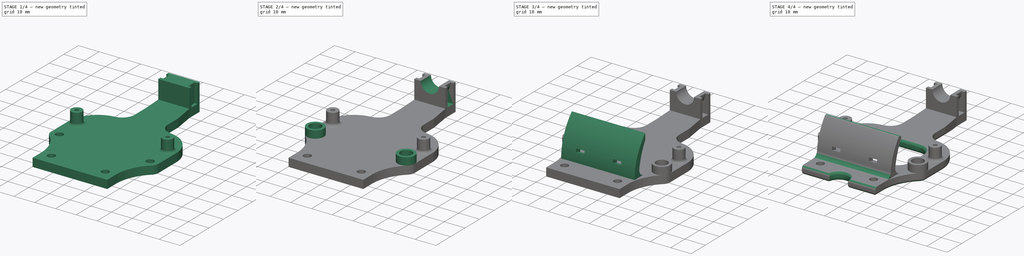
[diagram: build sequence overview — one tinted view per stage of 4, left to right]
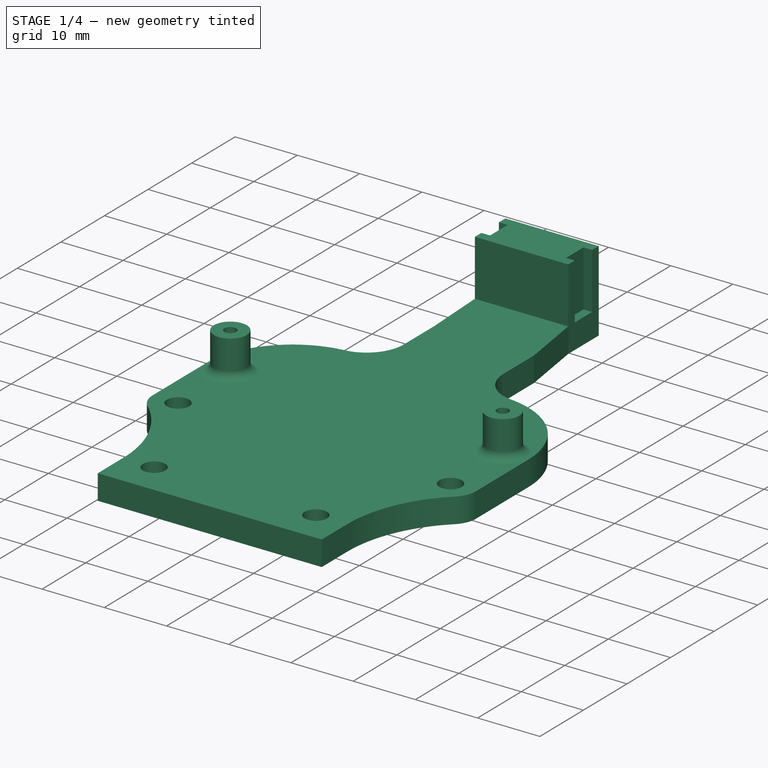
[diagram: stage 1 of 4 — iso view after this stage's code; geometry added in this stage tinted green]
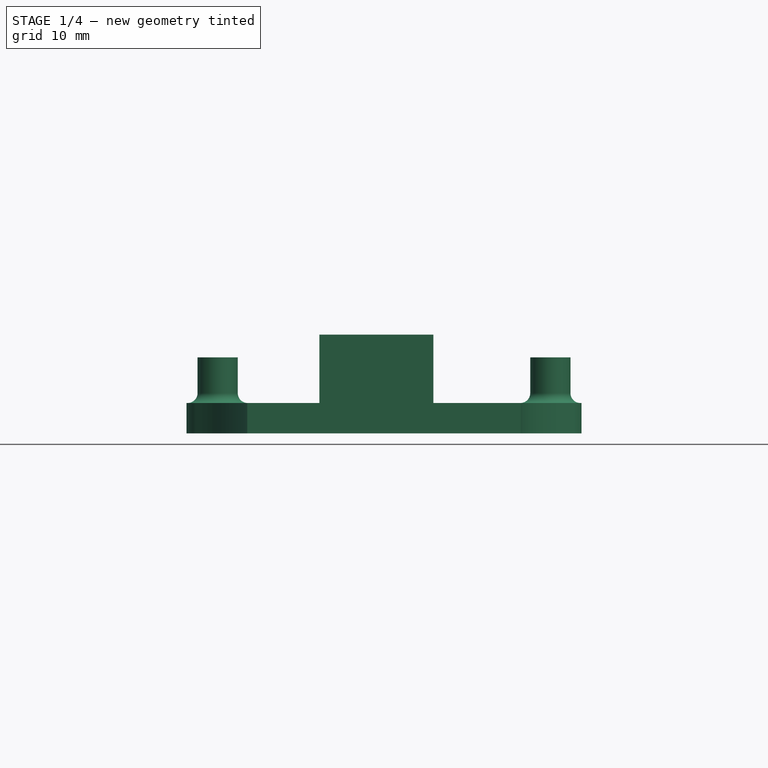
[diagram: stage 1 of 4 — front view after this stage's code; geometry added in this stage tinted green]
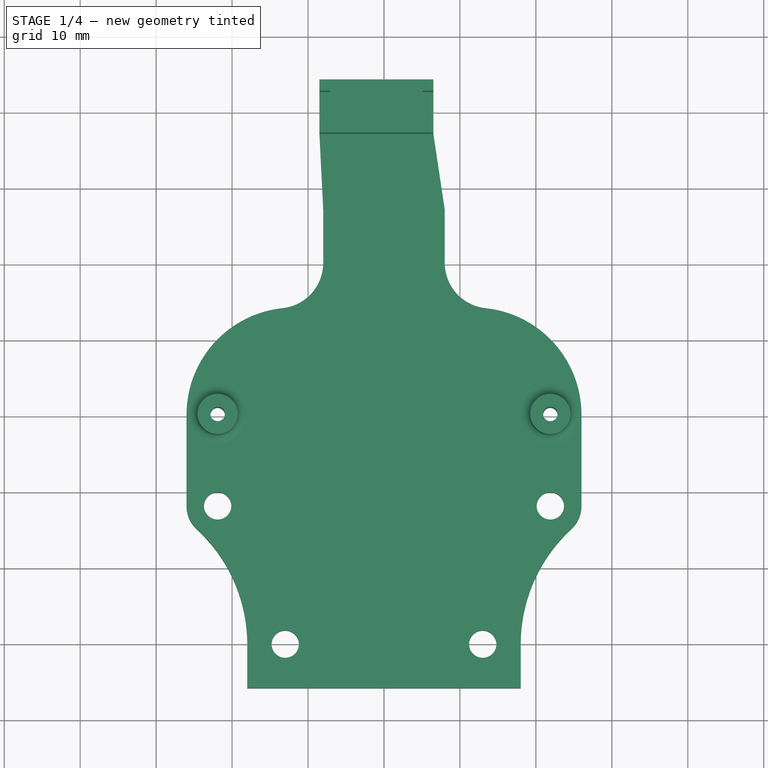
[diagram: stage 1 of 4 — top view after this stage's code; geometry added in this stage tinted green]
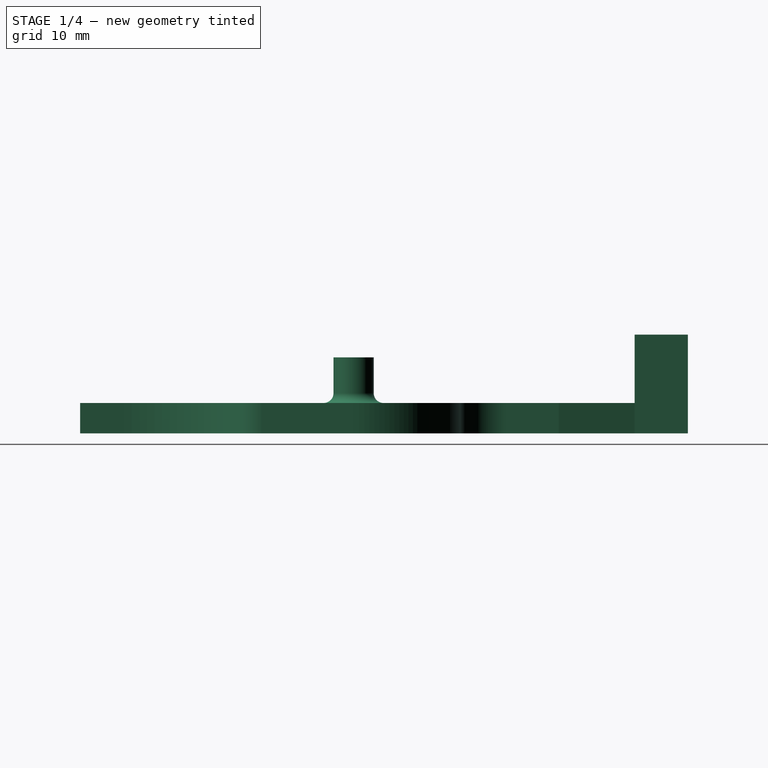
[diagram: stage 1 of 4 — right view after this stage's code; geometry added in this stage tinted green]
FCSTD DOCUMENT  (FreeCAD 1.0R39319 (Git))
Label: DragonSH36
License: All rights reserved
LicenseURL: https://en.wikipedia.org/wiki/All_rights_reserved
objects: Sketcher::SketchObject×10, PartDesign::Pad×5, PartDesign::Pocket×5, PartDesign::Fillet×4, App::VarSet×1, PartDesign::Body×1
note: 63 computed .brp shape members not serialized (recipe doc carries the construction recipe); baked Part::Feature solids carry a one-line shape summary decoded from their .brp

FEATURE [App::VarSet] VarSet
  BaseScrewDistance = 26
  CableGuideBottomOffset = 10.5
  CableGuideHeight = 18
  CableGuideTopOffset = 18
  CableTieHeight = 9
  CableTieWidth = 4
  ConectorWidth = 16
  DX = 52
  DZ = 4
  M3HeadDiameter = 5.6
  M3HeadHeight = 3.6
  M3PassThroughDiameter = 3.6
  M3SelfTappingDiameter = 2.9
  MiniBlackHeaderDiameter = 5.3
  MiniBlackLength = 6
  MiniBlackPassThroughDiameter = 2.4
  MiniBlackSelfTappingDiameter = 1.9
  MotorScrewDistance = 43.8
  MotorScrewFromBase = 18.2
  PcbPoleHeight = 6
  PcbThickness = 2
  Sht36OffsetFromStepper = 12
  Sht36ScrewToTop = 20
  UmbilicalOffset = 1
FEATURE [Sketcher::SketchObject] Sketch
  ArcFitTolerance = 1e-06
  AttachmentSupport = -> [XY_Plane]
  FullyConstrained = true
  MakeInternals = false
  MapMode = 5
  expr: Constraints[22] = VarSet.MotorScrewFromBase
  expr: Constraints[23] = VarSet.MotorScrewDistance
  expr: Constraints[26] = VarSet.DX
  expr: Constraints[37] = VarSet.Sht36OffsetFromStepper
  expr: Constraints[41] = VarSet.MiniBlackSelfTappingDiameter
  expr: Constraints[47] = VarSet.Sht36OffsetFromStepper
  expr: Constraints[52] = VarSet.Sht36ScrewToTop
  expr: Constraints[55] = VarSet.ConectorWidth
  expr: Constraints[5] = VarSet.BaseScrewDistance
  expr: Constraints[6] = VarSet.M3PassThroughDiameter
  expr: Constraints[92] = VarSet.UmbilicalOffset
  sketch-geometry (37):
    g0: Circle CenterX=13 CenterY=0 CenterZ=0 NormalX=0 NormalY=0 NormalZ=1 AngleXU=0 Radius=1.8
    g1: Circle CenterX=-13 CenterY=0 CenterZ=0 NormalX=0 NormalY=0 NormalZ=1 AngleXU=0 Radius=1.8
    g2: LineSegment [constr] StartX=-13 StartY=0 StartZ=0 EndX=13 EndY=0 EndZ=0
    g3: LineSegment StartX=-18 StartY=-5.8 StartZ=0 EndX=18 EndY=-5.8 EndZ=0
    g4: LineSegment StartX=18 StartY=-5.8 StartZ=0 EndX=18 EndY=-4.4e-15 EndZ=0
    g5: LineSegment StartX=-18 StartY=-5.8 StartZ=0 EndX=-18 EndY=0 EndZ=0
    g6: Circle CenterX=-21.9 CenterY=18.2 CenterZ=0 NormalX=0 NormalY=0 NormalZ=1 AngleXU=0 Radius=1.8
    g7: Circle CenterX=21.9 CenterY=18.2 CenterZ=0 NormalX=0 NormalY=0 NormalZ=1 AngleXU=0 Radius=1.8
    g8: LineSegment [constr] StartX=-21.9 StartY=18.2 StartZ=0 EndX=-21.9 EndY=0 EndZ=0
    g9: LineSegment [constr] StartX=-26 StartY=18.2 StartZ=0 EndX=26 EndY=18.2 EndZ=0
    g10: ArcOfCircle CenterX=-21.9 CenterY=18.2 CenterZ=0 NormalX=0 NormalY=0 NormalZ=1 AngleXU=0 Radius=4.1 StartAngle=3.14159 EndAngle=3.96987
    g11: ArcOfCircle CenterX=21.9 CenterY=18.2 CenterZ=0 NormalX=0 NormalY=0 NormalZ=1 AngleXU=0 Radius=4.1 StartAngle=5.45491 EndAngle=6.28319
    g12: ArcOfCircle CenterX=-38.6025 CenterY=0 CenterZ=0 NormalX=0 NormalY=0 NormalZ=1 AngleXU=0 Radius=20.6025 StartAngle=0 EndAngle=0.828277
    g13: ArcOfCircle CenterX=38.6025 CenterY=2.5e-15 CenterZ=0 NormalX=0 NormalY=0 NormalZ=1 AngleXU=0 Radius=20.6025 StartAngle=2.31332 EndAngle=3.14159
    g14: LineSegment [constr] StartX=-21.9 StartY=18.2 StartZ=0 EndX=-21.9 EndY=30.2 EndZ=0
    g15: Circle CenterX=-21.9 CenterY=30.2 CenterZ=0 NormalX=0 NormalY=0 NormalZ=1 AngleXU=0 Radius=0.95
    g16: Circle CenterX=21.9 CenterY=30.2 CenterZ=0 NormalX=0 NormalY=0 NormalZ=1 AngleXU=0 Radius=0.95
    g17: LineSegment StartX=26 StartY=18.2 StartZ=0 EndX=26 EndY=30.2 EndZ=0
    g18: LineSegment StartX=-26 StartY=18.2 StartZ=0 EndX=-26 EndY=30.2 EndZ=0
    g19: LineSegment [constr] StartX=-21.9 StartY=30.2 StartZ=0 EndX=21.9 EndY=30.2 EndZ=0
    g20: LineSegment [constr] StartX=1.2e-15 StartY=30.2 StartZ=0 EndX=0 EndY=50.2 EndZ=0
    g21: LineSegment [constr] StartX=-8 StartY=50.2 StartZ=0 EndX=8 EndY=50.2 EndZ=0
    g22: ArcOfCircle CenterX=-14 CenterY=50.2 CenterZ=0 NormalX=0 NormalY=0 NormalZ=1 AngleXU=0 Radius=6 StartAngle=4.81756 EndAngle=6.28319
    g23: ArcOfCircle CenterX=14 CenterY=50.2 CenterZ=0 NormalX=0 NormalY=0 NormalZ=1 AngleXU=0 Radius=6 StartAngle=3.14159 EndAngle=4.60722
    g24: LineSegment [constr] StartX=8 StartY=50.2 StartZ=0 EndX=14 EndY=50.2 EndZ=0
    g25: LineSegment [constr] StartX=-8 StartY=50.2 StartZ=0 EndX=-14 EndY=50.2 EndZ=0
    g26: ArcOfCircle CenterX=-11.8889 CenterY=30.2 CenterZ=0 NormalX=0 NormalY=0 NormalZ=1 AngleXU=0 Radius=14.1111 StartAngle=1.67596 EndAngle=3.14159
    g27: ArcOfCircle CenterX=11.8889 CenterY=30.2 CenterZ=0 NormalX=0 NormalY=0 NormalZ=1 AngleXU=0 Radius=14.1111 StartAngle=0 EndAngle=1.46563
    g28: LineSegment StartX=-8 StartY=50.2 StartZ=0 EndX=-8 EndY=57.2 EndZ=0
    g29: LineSegment StartX=8 StartY=50.2 StartZ=0 EndX=8 EndY=57.2 EndZ=0
    g30: LineSegment [constr] StartX=-8.5 StartY=67.2 StartZ=0 EndX=6.5 EndY=67.2 EndZ=0
    g31: LineSegment StartX=-8 StartY=57.2 StartZ=0 EndX=-8.5 EndY=67.2 EndZ=0
    g32: LineSegment StartX=8 StartY=57.2 StartZ=0 EndX=6.5 EndY=67.2 EndZ=0
    g33: LineSegment StartX=-8.5 StartY=67.2 StartZ=0 EndX=-8.5 EndY=74.2 EndZ=0
    g34: LineSegment StartX=6.5 StartY=67.2 StartZ=0 EndX=6.5 EndY=74.2 EndZ=0
    g35: LineSegment StartX=-8.5 StartY=74.2 StartZ=0 EndX=6.5 EndY=74.2 EndZ=0
    g36: LineSegment [constr] StartX=-1 StartY=30.2 StartZ=0 EndX=-1 EndY=90.2 EndZ=0
  constraints (95):
    c: PointOnObject(g0,g-1)
    c: Symmetric(g1,g0,g-1)
    c: Equal(g0,g1)
    c: Coincident(g2,g1)
    c: Coincident(g2,g0)
    c: Distance(g2) = 26
    c: Diameter(g0) = 3.6
    c: Distance(g3) = 36
    c: Symmetric(g3,g3,g-2)
    c: Coincident(g4,g3)
    c: PointOnObject(g4,g-1)
    c: Vertical(g4)
    c: Distance(g4) = 5.8
    c: Coincident(g5,g3)
    c: PointOnObject(g5,g-1)
    c: Vertical(g5)
    c: Equal(g0,g7)
    c: Equal(g7,g6)
    c: Symmetric(g6,g7,g-2)
    c: Coincident(g8,g6)
    c: PointOnObject(g8,g-1)
    c: Vertical(g8)
    c: Distance(g8) = 18.2
    c: Distance(g6,g7) = 43.8
    c: Symmetric(g9,g9,g-2)
    c: PointOnObject(g7,g9)
    c: Distance(g9) = 52
    c: Coincident(g10,g6)
    c: Coincident(g10,g9)
    c: Coincident(g11,g7)
    c: Coincident(g11,g9)
    c: Tangent(g12,g10) = 1.5708
    c: Tangent(g12,g5) = -1.5708
    c: Tangent(g13,g4) = 1.5708
    c: Tangent(g13,g11) = 1.5708
    c: Coincident(g14,g6)
    c: Vertical(g14)
    c: Distance(g14) = 12
    c: Coincident(g15,g14)
    c: Symmetric(g14,g16,g-2)
    c: Equal(g15,g16)
    c: Diameter(g16) = 1.9
    c: Coincident(g17,g9)
    c: Vertical(g17)
    c: Coincident(g18,g9)
    c: Vertical(g18)
    c: Equal(g17,g18)
    c: Distance(g17) = 12
    c: Coincident(g19,g14)
    c: Coincident(g19,g16)
    c: Symmetric(g19,g19,g20)
    c: PointOnObject(g20,g-2)
    c: Distance(g20) = 20
    c: PointOnObject(g20,g21)
    c: Symmetric(g21,g21,g-2)
    c: Distance(g21) = 16
    c: Coincident(g22,g21)
    c: Coincident(g23,g21)
    c: Coincident(g24,g21)
    c: Horizontal(g24)
    c: Coincident(g25,g21)
    c: Horizontal(g25)
    c: Coincident(g22,g25)
    c: Coincident(g23,g24)
    c: Equal(g25,g24)
    c: Tangent(g26,g18) = 1.5708
    c: Tangent(g26,g22) = 1.5708
    c: Tangent(g27,g17) = -1.5708
    c: Tangent(g27,g23) = 1.5708
    c: Distance(g24) = 6
    c: Coincident(g28,g21)
    c: Vertical(g28)
    c: Coincident(g29,g21)
    c: Vertical(g29)
    c: Equal(g29,g28)
    c: Distance(g29) = 7
    c: Distance(g30) = 15
    c: DistanceY(g20,g30) = 17
    c: Coincident(g31,g28)
    c: Coincident(g31,g30)
    c: Coincident(g32,g29)
    c: Coincident(g32,g30)
    c: Coincident(g33,g30)
    c: Vertical(g33)
    c: Coincident(g34,g30)
    c: Vertical(g34)
    c: Equal(g33,g34)
    c: Distance(g33) = 7
    c: Coincident(g35,g33)
    c: Coincident(g35,g34)
    c: PointOnObject(g36,g19)
    c: Vertical(g36)
    c: DistanceX(g36,g20) = 1
    c: Symmetric(g30,g30,g36)
    c: Distance(g36) = 60
FEATURE [PartDesign::Pad] Pad  label="Main Body"
  Direction = (0,0,1)
  Length = 4
  Length2 = 10
  Profile = -> Sketch
  ReferenceAxis = -> Sketch [N_Axis]
  Refine = true
  Suppressed = false
  Type = 0
  expr: Length = VarSet.DZ
FEATURE [Sketcher::SketchObject] Sketch001
  ArcFitTolerance = 1e-06
  AttachmentSupport = -> [Pad]
  ExternalGeometry = -> [Pad]
  FullyConstrained = true
  MakeInternals = false
  MapMode = 5
  Placement = pos=(0,0,4) rot=(0,0,1;0rad)
  expr: Constraints[1] = VarSet.MiniBlackHeaderDiameter
  sketch-geometry (4):
    g0: Circle CenterX=-21.9 CenterY=30.2 CenterZ=0 NormalX=0 NormalY=0 NormalZ=1 AngleXU=0 Radius=2.65
    g1: Circle CenterX=21.9 CenterY=30.2 CenterZ=0 NormalX=0 NormalY=0 NormalZ=1 AngleXU=0 Radius=2.65
    g2: Circle CenterX=-21.9 CenterY=30.2 CenterZ=0 NormalX=0 NormalY=0 NormalZ=1 AngleXU=0 Radius=0.95
    g3: Circle CenterX=21.9 CenterY=30.2 CenterZ=0 NormalX=0 NormalY=0 NormalZ=1 AngleXU=0 Radius=0.95
  constraints (8):
    c: Equal(g1,g0)
    c: Diameter(g1) = 5.3
    c: Coincident(g2,g0)
    c: Coincident(g3,g1)
    c: Equal(g-3,g2)
    c: Coincident(g0,g-3)
    c: Equal(g3,g-4)
    c: Coincident(g1,g-4)
FEATURE [PartDesign::Pad] Pad001  label="PCB Poles"
  BaseFeature = -> Pad
  Direction = (0,0,1)
  Length = 6
  Length2 = 10
  Profile = -> Sketch001
  ReferenceAxis = -> Sketch001 [N_Axis]
  Refine = true
  Suppressed = false
  Type = 0
  expr: Length = VarSet.PcbPoleHeight
FEATURE [PartDesign::Fillet] Fillet  label="PCB Pole Reinforcement"
  Base = -> Pad001 [Edge56,Edge54]
  BaseFeature = -> Pad001
  Radius = 1.3
  Refine = true
  SupportTransform = false
  Suppressed = false
  UseAllEdges = false
FEATURE [Sketcher::SketchObject] Sketch002
  ArcFitTolerance = 1e-06
  AttachmentSupport = -> [Fillet]
  ExternalGeometry = -> [Fillet]
  FullyConstrained = true
  MakeInternals = false
  MapMode = 5
  Placement = pos=(0,0,4) rot=(0,0,1;0rad)
  expr: Constraints[30] = VarSet.CableTieWidth
  sketch-geometry (12):
    g0: LineSegment StartX=-8.5 StartY=67.2 StartZ=0 EndX=6.5 EndY=67.2 EndZ=0
    g1: LineSegment StartX=6.5 StartY=74.2 StartZ=0 EndX=-8.5 EndY=74.2 EndZ=0
    g2: LineSegment StartX=-8.5 StartY=74.2 StartZ=0 EndX=-8.5 EndY=72.7 EndZ=0
    g3: LineSegment StartX=6.5 StartY=74.2 StartZ=0 EndX=6.5 EndY=72.7 EndZ=0
    g4: LineSegment StartX=6.5 StartY=67.2 StartZ=0 EndX=6.5 EndY=68.7 EndZ=0
    g5: LineSegment StartX=-8.5 StartY=67.2 StartZ=0 EndX=-8.5 EndY=68.7 EndZ=0
    g6: LineSegment StartX=-8.5 StartY=72.7 StartZ=0 EndX=-7.1 EndY=72.7 EndZ=0
    g7: LineSegment StartX=-8.5 StartY=68.7 StartZ=0 EndX=-7.1 EndY=68.7 EndZ=0
    g8: LineSegment StartX=6.5 StartY=72.7 StartZ=0 EndX=5.1 EndY=72.7 EndZ=0
    g9: LineSegment StartX=6.5 StartY=68.7 StartZ=0 EndX=5.1 EndY=68.7 EndZ=0
    g10: LineSegment StartX=-7.1 StartY=68.7 StartZ=0 EndX=-7.1 EndY=72.7 EndZ=0
    g11: LineSegment StartX=5.1 StartY=68.7 StartZ=0 EndX=5.1 EndY=72.7 EndZ=0
  constraints (33):
    c: Horizontal(g0)
    c: Coincident(g2,g1)
    c: Vertical(g2)
    c: Coincident(g3,g1)
    c: Vertical(g3)
    c: Coincident(g4,g0)
    c: Vertical(g4)
    c: Coincident(g5,g0)
    c: PointOnObject(g5,g-3)
    c: Equal(g3,g2)
    c: Equal(g2,g5)
    c: Equal(g5,g4)
    c: Coincident(g1,g-3)
    c: Coincident(g6,g2)
    c: Horizontal(g6)
    c: Coincident(g7,g5)
    c: Horizontal(g7)
    c: Distance(g6) = 1.4
    c: Coincident(g8,g3)
    c: Horizontal(g8)
    c: Coincident(g9,g4)
    c: Horizontal(g9)
    c: Equal(g6,g7)
    c: Equal(g7,g9)
    c: Equal(g9,g8)
    c: Coincident(g10,g7)
    c: Coincident(g10,g6)
    c: Coincident(g11,g9)
    c: Coincident(g11,g8)
    c: Vertical(g11)
    c: Distance(g10) = 4
    c: Coincident(g0,g-3)
    c: Coincident(g1,g-4)
FEATURE [PartDesign::Pad] Pad002  label="Cable Tie Block"
  BaseFeature = -> Fillet
  Direction = (0,0,1)
  Length = 9
  Length2 = 10
  Profile = -> Sketch002
  ReferenceAxis = -> Sketch002 [N_Axis]
  Refine = true
  Suppressed = false
  Type = 0
  expr: Length = VarSet.CableTieHeight
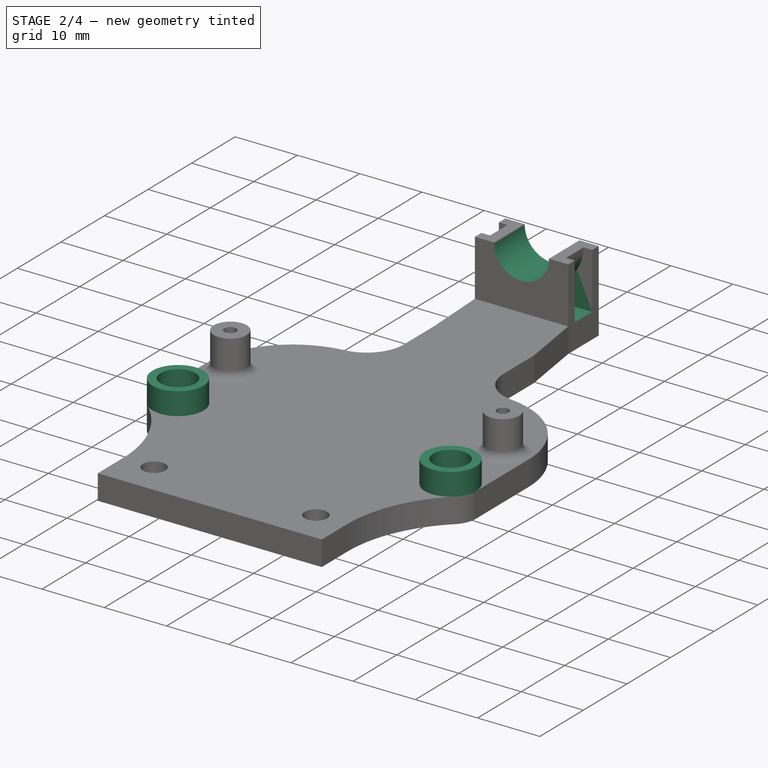
[diagram: stage 2 of 4 — iso view after this stage's code; geometry added in this stage tinted green]
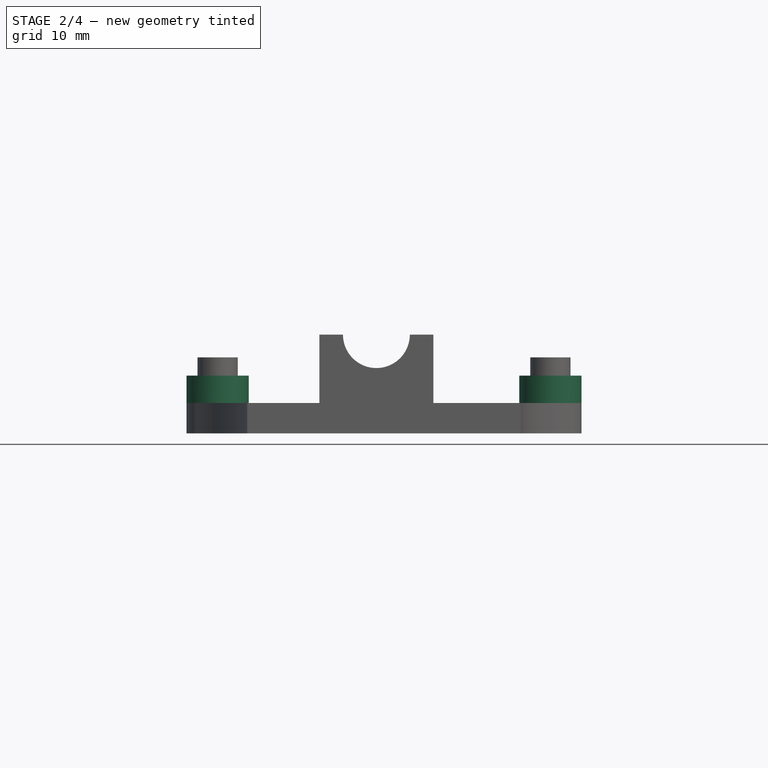
[diagram: stage 2 of 4 — front view after this stage's code; geometry added in this stage tinted green]
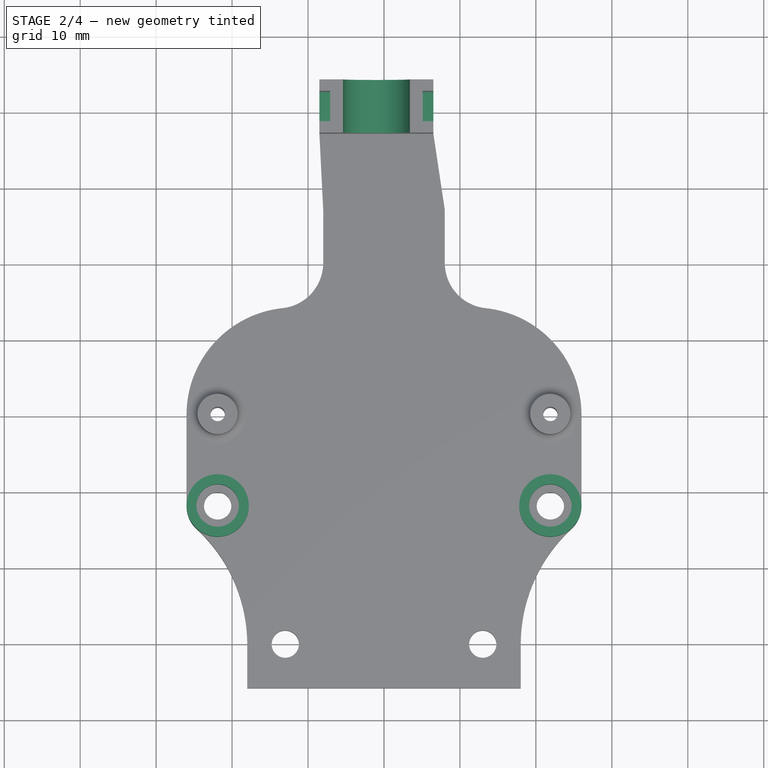
[diagram: stage 2 of 4 — top view after this stage's code; geometry added in this stage tinted green]
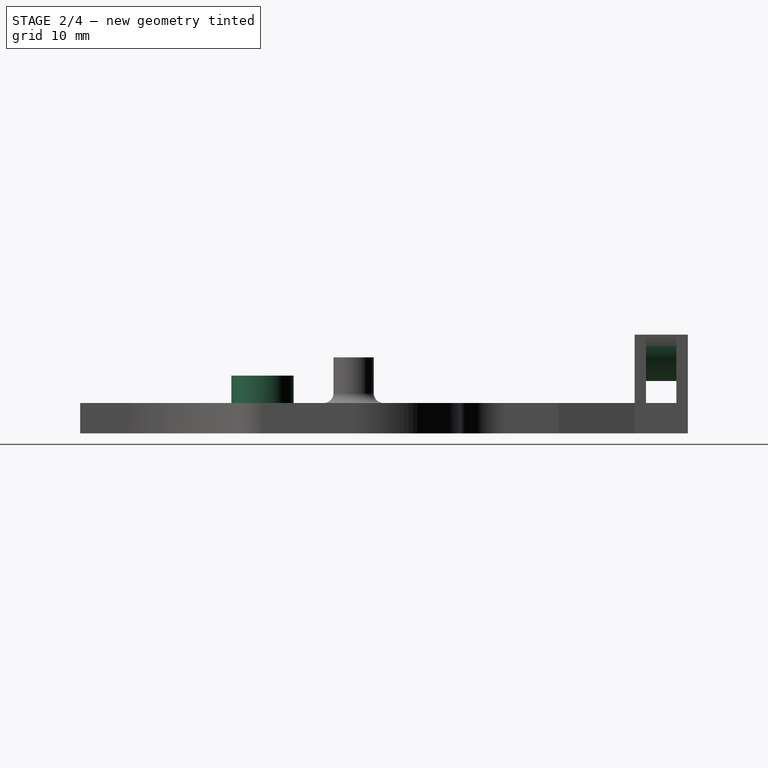
[diagram: stage 2 of 4 — right view after this stage's code; geometry added in this stage tinted green]
FEATURE [Sketcher::SketchObject] Sketch003
  ArcFitTolerance = 1e-06
  AttachmentSupport = -> [Pad002]
  ExternalGeometry = -> [Pad002]
  FullyConstrained = true
  MakeInternals = false
  MapMode = 5
  Placement = pos=(0,74.2,9.43401e-11) rot=(0,0.707107,0.707107;3.14159rad)
  sketch-geometry (2):
    g0: ArcOfCircle CenterX=1 CenterY=13 CenterZ=0 NormalX=0 NormalY=0 NormalZ=1 AngleXU=0 Radius=4.4 StartAngle=3.14159 EndAngle=6.28319
    g1: LineSegment StartX=-3.4 StartY=13 StartZ=0 EndX=5.4 EndY=13 EndZ=0
  constraints (6):
    c: PointOnObject(g0,g-3)
    c: PointOnObject(g0,g-3)
    c: Diameter(g0) = 8.8
    c: Coincident(g1,g0)
    c: Coincident(g1,g0)
    c: Symmetric(g-3,g-3,g0)
FEATURE [PartDesign::Pocket] Pocket  label="Cable Passage"
  BaseFeature = -> Pad002
  Direction = (0,-1,-1.2713e-12)
  Length = 15
  Length2 = 5
  Profile = -> Sketch003
  ReferenceAxis = -> Sketch003 [N_Axis]
  Refine = true
  Suppressed = false
  Type = 0
FEATURE [Sketcher::SketchObject] Sketch004
  ArcFitTolerance = 1e-06
  AttachmentSupport = -> [Pocket]
  ExternalGeometry = -> [Pocket]
  FullyConstrained = true
  MakeInternals = false
  MapMode = 5
  Placement = pos=(0,68.7,0) rot=(0,0.707107,0.707107;3.14159rad)
  sketch-geometry (5):
    g0: ArcOfCircle CenterX=1 CenterY=13 CenterZ=0 NormalX=0 NormalY=0 NormalZ=1 AngleXU=0 Radius=6.1 StartAngle=3.14159 EndAngle=6.28319
    g1: LineSegment [constr] StartX=5.4 StartY=13 StartZ=0 EndX=7.1 EndY=13 EndZ=0
    g2: LineSegment StartX=-5.1 StartY=13 StartZ=0 EndX=-5.1 EndY=4 EndZ=0
    g3: LineSegment StartX=-5.1 StartY=4 StartZ=0 EndX=7.1 EndY=4 EndZ=0
    g4: LineSegment StartX=7.1 StartY=4 StartZ=0 EndX=7.1 EndY=13 EndZ=0
  constraints (12):
    c: Coincident(g0,g-3)
    c: Coincident(g0,g-4)
    c: Coincident(g1,g-3)
    c: Horizontal(g1)
    c: Coincident(g1,g0)
    c: Coincident(g2,g0)
    c: Coincident(g2,g-4)
    c: Coincident(g3,g2)
    c: Horizontal(g3)
    c: Coincident(g4,g3)
    c: Vertical(g4)
    c: Coincident(g4,g0)
FEATURE [PartDesign::Pocket] Pocket001  label="Cable Tie Channel"
  BaseFeature = -> Pocket
  Direction = (0,-1,2e-16)
  Length = 4
  Length2 = 5
  Profile = -> Sketch004
  ReferenceAxis = -> Sketch004 [N_Axis]
  Refine = true
  Reversed = true
  Suppressed = false
  Type = 0
  expr: Length = VarSet.CableTieWidth
FEATURE [Sketcher::SketchObject] Sketch005
  ArcFitTolerance = 1e-06
  AttachmentSupport = -> [Pocket001]
  ExternalGeometry = -> [Pocket001]
  FullyConstrained = true
  MakeInternals = false
  MapMode = 5
  Placement = pos=(0,0,4) rot=(0,0,1;0rad)
  expr: Constraints[1] = VarSet.M3HeadDiameter
  sketch-geometry (4):
    g0: Circle CenterX=-21.9 CenterY=18.2 CenterZ=0 NormalX=0 NormalY=0 NormalZ=1 AngleXU=0 Radius=2.8
    g1: Circle CenterX=-21.9 CenterY=18.2 CenterZ=0 NormalX=0 NormalY=0 NormalZ=1 AngleXU=0 Radius=4.09999
    g2: Circle CenterX=21.9 CenterY=18.2 CenterZ=0 NormalX=0 NormalY=0 NormalZ=1 AngleXU=0 Radius=2.8
    g3: Circle CenterX=21.9 CenterY=18.2 CenterZ=0 NormalX=0 NormalY=0 NormalZ=1 AngleXU=0 Radius=4.09999
  constraints (8):
    c: Coincident(g0,g-4)
    c: Diameter(g0) = 5.6
    c: Coincident(g1,g0)
    c: Tangent(g1,g-5)
    c: Coincident(g2,g-3)
    c: Coincident(g3,g2)
    c: Equal(g0,g2)
    c: Equal(g1,g3)
FEATURE [PartDesign::Pad] Pad003  label="Stepper Screws"
  BaseFeature = -> Pocket001
  Direction = (0,0,1)
  Length = 3.6
  Length2 = 10
  Profile = -> Sketch005
  ReferenceAxis = -> Sketch005 [N_Axis]
  Refine = true
  Suppressed = false
  Type = 0
  expr: Length = VarSet.M3HeadHeight
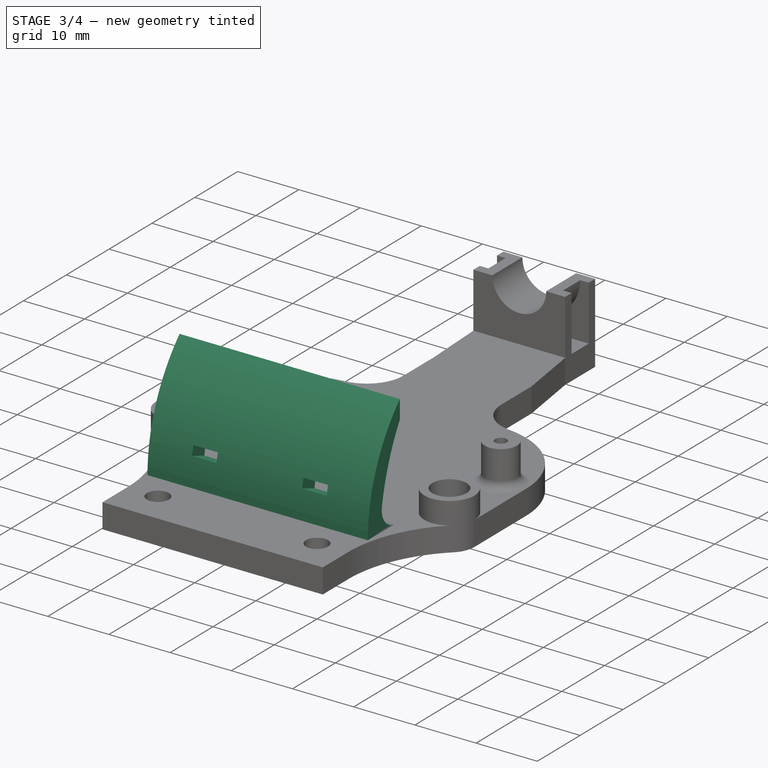
[diagram: stage 3 of 4 — iso view after this stage's code; geometry added in this stage tinted green]
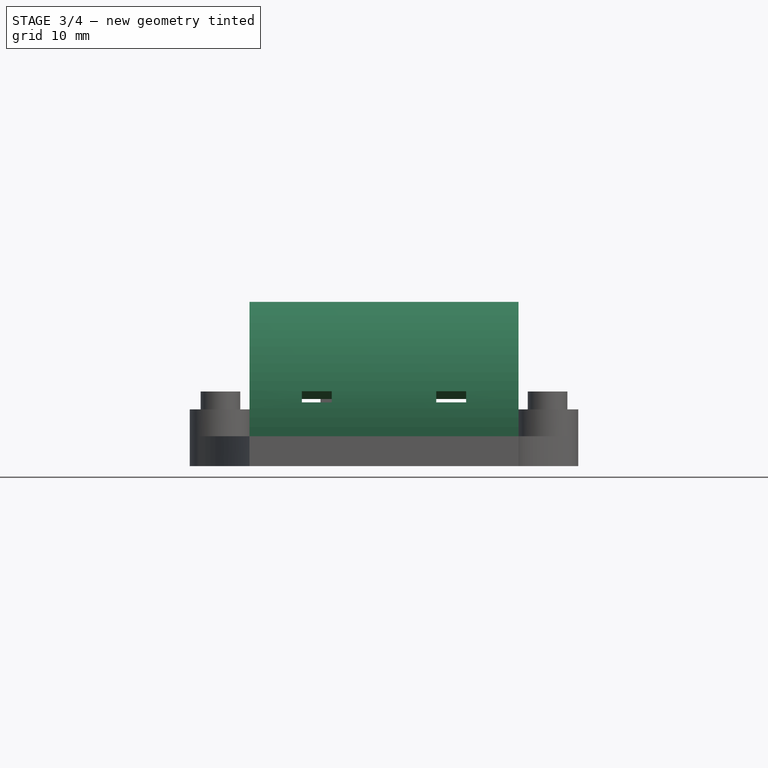
[diagram: stage 3 of 4 — front view after this stage's code; geometry added in this stage tinted green]
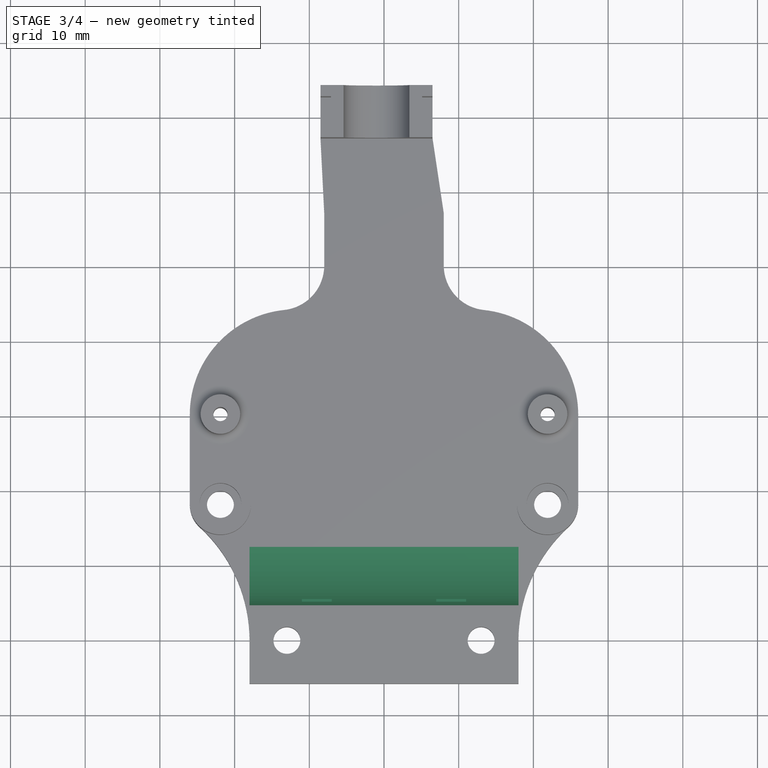
[diagram: stage 3 of 4 — top view after this stage's code; geometry added in this stage tinted green]
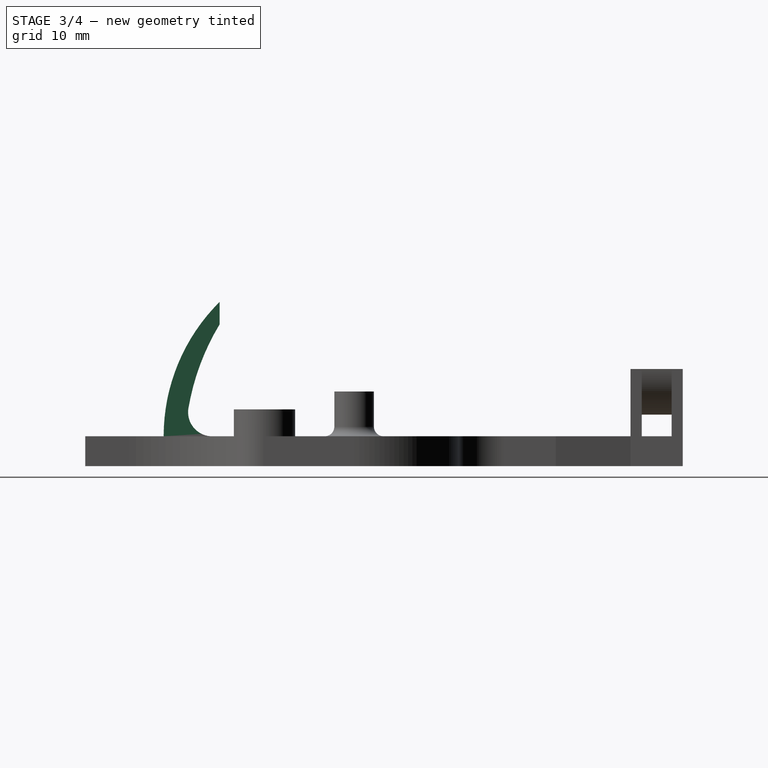
[diagram: stage 3 of 4 — right view after this stage's code; geometry added in this stage tinted green]
FEATURE [Sketcher::SketchObject] Sketch006
  ArcFitTolerance = 1e-06
  AttachmentSupport = -> [Pad003]
  ExternalGeometry = -> [Pad003]
  FullyConstrained = true
  MakeInternals = false
  MapMode = 5
  Placement = pos=(0,0,4) rot=(0,0,1;0rad)
  expr: Constraints[15] = VarSet.CableGuideTopOffset
  expr: Constraints[5] = VarSet.CableGuideBottomOffset
  sketch-geometry (6):
    g0: LineSegment [constr] StartX=-18 StartY=-5.8 StartZ=0 EndX=-18 EndY=4.7 EndZ=0
    g1: LineSegment [constr] StartX=18 StartY=-5.8 StartZ=0 EndX=18 EndY=4.7 EndZ=0
    g2: LineSegment StartX=-18 StartY=4.7 StartZ=0 EndX=18 EndY=4.7 EndZ=0
    g3: LineSegment StartX=18 StartY=4.7 StartZ=0 EndX=18 EndY=12.2 EndZ=0
    g4: LineSegment StartX=18 StartY=12.2 StartZ=0 EndX=-18 EndY=12.2 EndZ=0
    g5: LineSegment StartX=-18 StartY=12.2 StartZ=0 EndX=-18 EndY=4.7 EndZ=0
  constraints (16):
    c: Coincident(g0,g-3)
    c: Vertical(g0)
    c: Coincident(g1,g-3)
    c: Vertical(g1)
    c: Equal(g0,g1)
    c: Distance(g0) = 10.5
    c: Coincident(g2,g3)
    c: Coincident(g3,g4)
    c: Coincident(g4,g5)
    c: Coincident(g5,g2)
    c: Horizontal(g4)
    c: Vertical(g3)
    c: Vertical(g5)
    c: Coincident(g2,g0)
    c: Coincident(g2,g1)
    c: DistanceY(g4,g-4) = 18
FEATURE [PartDesign::Pad] Pad004  label="Cable Guide Block"
  BaseFeature = -> Pad003
  Direction = (0,0,1)
  Length = 18
  Length2 = 10
  Profile = -> Sketch006
  ReferenceAxis = -> Sketch006 [N_Axis]
  Refine = true
  Suppressed = false
  Type = 0
  expr: Length = VarSet.CableGuideHeight
FEATURE [Sketcher::SketchObject] Sketch007
  ArcFitTolerance = 1e-06
  AttachmentSupport = -> [Pad004]
  ExternalGeometry = -> [Pad004]
  FullyConstrained = true
  MakeInternals = false
  MapMode = 5
  Placement = pos=(18,0,0) rot=(0.57735,0.57735,0.57735;2.0944rad)
  sketch-geometry (9):
    g0: ArcOfCircle CenterX=30.05 CenterY=4 CenterZ=0 NormalX=0 NormalY=0 NormalZ=1 AngleXU=0 Radius=25.35 StartAngle=2.35201 EndAngle=3.14159
    g1: LineSegment StartX=12.2 StartY=22 StartZ=0 EndX=4.7 EndY=22 EndZ=0
    g2: LineSegment StartX=4.7 StartY=22 StartZ=0 EndX=4.7 EndY=4 EndZ=0
    g3: LineSegment [constr] StartX=12.2 StartY=22 StartZ=0 EndX=12.2 EndY=19 EndZ=0
    g4: ArcOfCircle CenterX=39.8159 CenterY=2.32869 CenterZ=0 NormalX=0 NormalY=0 NormalZ=1 AngleXU=0 Radius=32.2578 StartAngle=2.59847 EndAngle=2.9721
    g5: LineSegment StartX=11.2 StartY=4 StartZ=0 EndX=12.2 EndY=4 EndZ=0
    g6: LineSegment StartX=12.2 StartY=4 StartZ=0 EndX=12.2 EndY=19 EndZ=0
    g7: LineSegment [constr] StartX=8.02028 StartY=7.77012 StartZ=0 EndX=5.06327 EndY=8.27618 EndZ=0
    g8: ArcOfCircle CenterX=11.2 CenterY=7.22595 CenterZ=0 NormalX=0 NormalY=0 NormalZ=1 AngleXU=0 Radius=3.22595 StartAngle=2.9721 EndAngle=4.71239
  constraints (22):
    c: Coincident(g0,g-4)
    c: Tangent(g0,g-3) = 1.5708
    c: Coincident(g1,g0)
    c: Coincident(g1,g-3)
    c: Tangent(g2,g0) = -1.5708
    c: Coincident(g3,g0)
    c: PointOnObject(g3,g-4)
    c: Distance(g3) = 3
    c: Coincident(g4,g3)
    c: Coincident(g5,g-4)
    c: Coincident(g6,g5)
    c: Coincident(g6,g3)
    c: Equal(g2,g-3)
    c: PointOnObject(g5,g-5)
    c: Coincident(g7,g4)
    c: PointOnObject(g7,g0)
    c: Perpendicular(g0,g7)
    c: Equal(g3,g7)
    c: Tangent(g8,g4) = -1.5708
    c: Tangent(g8,g5) = -1.5708
    c: Perpendicular(g4,g7)
    c: Distance(g5) = 1
FEATURE [Sketcher::SketchObject] Sketch008
  ArcFitTolerance = 1e-06
  AttachmentOffset = pos=(0,0,0) rot=(1,0,0;-0.349066rad)
  AttachmentSupport = -> [Pad004]
  ExternalGeometry = -> [Pad004]
  FullyConstrained = true
  MakeInternals = false
  MapMode = 5
  Placement = pos=(0,4.7,0) rot=(-1,0,0;5.06145rad)
  expr: Constraints[19] = VarSet.CableTieWidth
  sketch-geometry (8):
    g0: LineSegment StartX=-11 StartY=8.16756 StartZ=0 EndX=-7 EndY=8.16756 EndZ=0
    g1: LineSegment StartX=-7 StartY=8.16756 StartZ=0 EndX=-7 EndY=9.66756 EndZ=0
    g2: LineSegment StartX=-7 StartY=9.66756 StartZ=0 EndX=-11 EndY=9.66756 EndZ=0
    g3: LineSegment StartX=-11 StartY=9.66756 StartZ=0 EndX=-11 EndY=8.16756 EndZ=0
    g4: LineSegment StartX=7 StartY=8.16756 StartZ=0 EndX=11 EndY=8.16756 EndZ=0
    g5: LineSegment StartX=11 StartY=8.16756 StartZ=0 EndX=11 EndY=9.66756 EndZ=0
    g6: LineSegment StartX=11 StartY=9.66756 StartZ=0 EndX=7 EndY=9.66756 EndZ=0
    g7: LineSegment StartX=7 StartY=9.66756 StartZ=0 EndX=7 EndY=8.16756 EndZ=0
  constraints (23):
    c: Coincident(g0,g1)
    c: Coincident(g1,g2)
    c: Coincident(g2,g3)
    c: Coincident(g3,g0)
    c: Horizontal(g0)
    c: Horizontal(g2)
    c: Vertical(g1)
    c: Vertical(g3)
    c: Coincident(g4,g5)
    c: Coincident(g5,g6)
    c: Coincident(g6,g7)
    c: Coincident(g7,g4)
    c: Horizontal(g4)
    c: Horizontal(g6)
    c: Vertical(g5)
    c: Vertical(g7)
    c: Equal(g6,g2)
    c: Distance(g5) = 1.5
    c: Symmetric(g6,g1,g-2)
    c: Distance(g6) = 4
    c: Equal(g5,g1)
    c: DistanceX(g-3,g0) = 7
    c: DistanceY(g-3,g4) = 8
FEATURE [PartDesign::Pocket] Pocket003  label="Lower Cable Tie"
  BaseFeature = -> Pad004
  Direction = (0,0.939693,-0.34202)
  Length = 7
  Length2 = 4
  Profile = -> Sketch008
  ReferenceAxis = -> Sketch008 [N_Axis]
  Refine = true
  Suppressed = false
  Type = 4
FEATURE [PartDesign::Pocket] Pocket002  label="Cable Guide Shape"
  BaseFeature = -> Pocket003
  Direction = (-1,0,0)
  Length = 5
  Length2 = 5
  Profile = -> Sketch007
  ReferenceAxis = -> Sketch007 [N_Axis]
  Refine = true
  Suppressed = false
  Type = 1
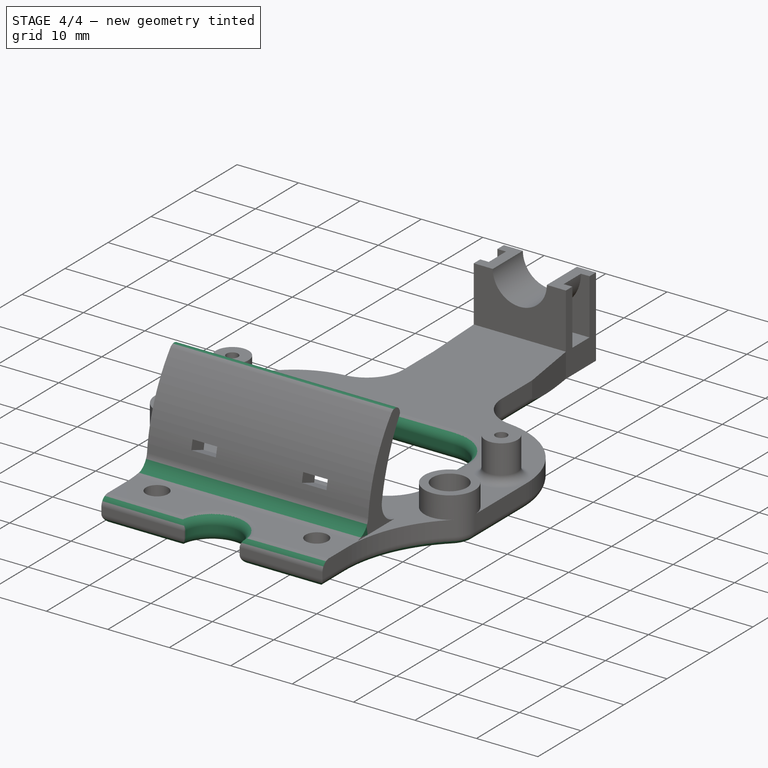
[diagram: stage 4 of 4 — iso view after this stage's code; geometry added in this stage tinted green]
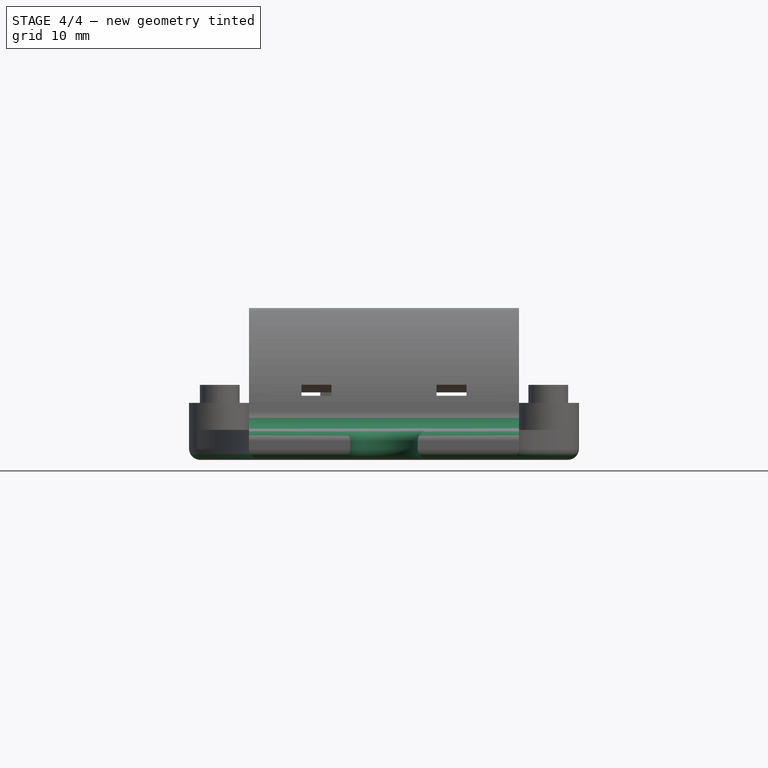
[diagram: stage 4 of 4 — front view after this stage's code; geometry added in this stage tinted green]
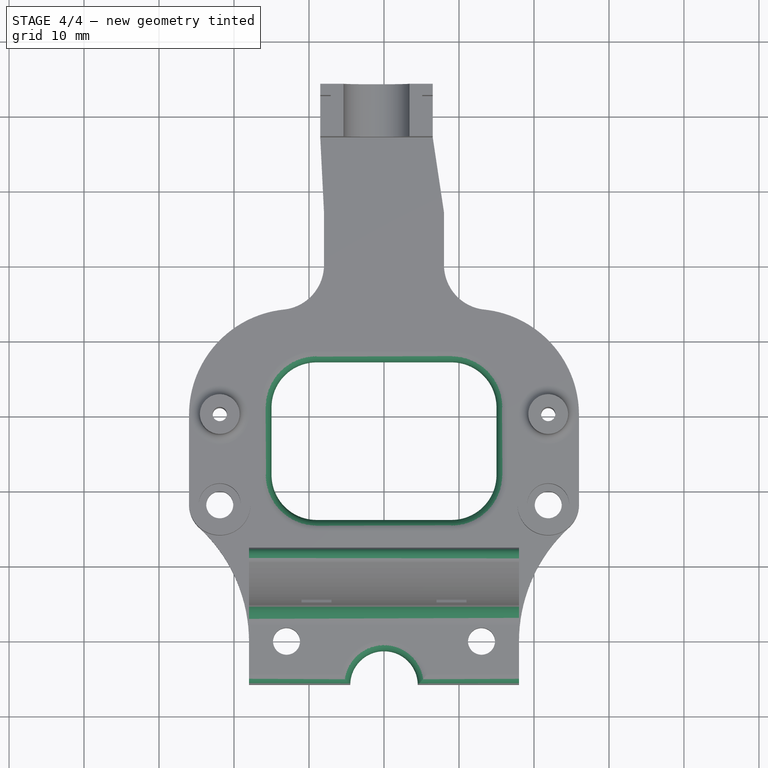
[diagram: stage 4 of 4 — top view after this stage's code; geometry added in this stage tinted green]
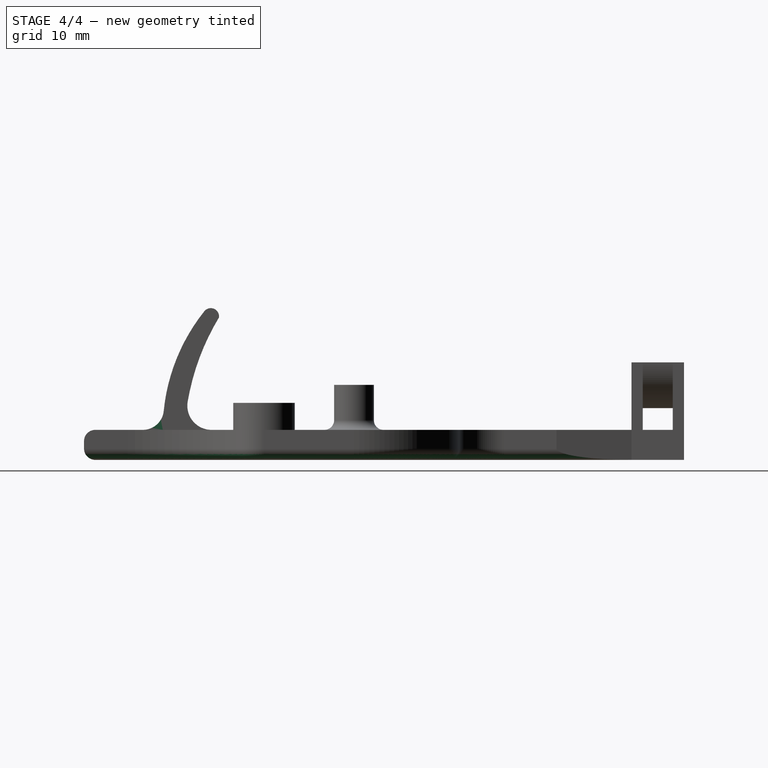
[diagram: stage 4 of 4 — right view after this stage's code; geometry added in this stage tinted green]
FEATURE [PartDesign::Fillet] Fillet001  label="Cable Guide Reinforcement"
  Base = -> Pocket002 [Edge133]
  BaseFeature = -> Pocket002
  Radius = 2.8
  Refine = true
  SupportTransform = false
  Suppressed = false
  UseAllEdges = false
FEATURE [PartDesign::Fillet] Fillet002  label="Cable Guide Soft Edge"
  Base = -> Fillet001 [Edge105]
  BaseFeature = -> Fillet001
  Radius = 1.1
  Refine = true
  SupportTransform = false
  Suppressed = false
  UseAllEdges = false
FEATURE [Sketcher::SketchObject] Sketch009
  ArcFitTolerance = 1e-06
  AttachmentSupport = -> [Fillet002]
  ExternalGeometry = -> [Fillet002]
  FullyConstrained = true
  MakeInternals = false
  MapMode = 5
  Placement = pos=(0,0,4) rot=(0,0,1;0rad)
  sketch-geometry (16):
    g0: ArcOfCircle CenterX=0 CenterY=-5.8 CenterZ=0 NormalX=0 NormalY=0 NormalZ=1 AngleXU=0 Radius=4.5 StartAngle=0 EndAngle=3.14159
    g1: LineSegment StartX=-4.5 StartY=-5.8 StartZ=0 EndX=4.5 EndY=-5.8 EndZ=0
    g2: LineSegment [constr] StartX=13.3702 StartY=44.2331 StartZ=0 EndX=-26.6298 EndY=44.2331 EndZ=0
    g3: LineSegment StartX=-15 StartY=31.2331 StartZ=0 EndX=-15 EndY=22.2 EndZ=0
    g4: LineSegment StartX=-9 StartY=16.2 StartZ=0 EndX=9 EndY=16.2 EndZ=0
    g5: LineSegment StartX=15 StartY=22.2 StartZ=0 EndX=15 EndY=31.2331 EndZ=0
    g6: LineSegment StartX=9 StartY=37.2331 StartZ=0 EndX=-9 EndY=37.2331 EndZ=0
    g7: ArcOfCircle CenterX=-9 CenterY=31.2331 CenterZ=0 NormalX=0 NormalY=0 NormalZ=1 AngleXU=0 Radius=6 StartAngle=1.5708 EndAngle=3.14159
    g8: ArcOfCircle CenterX=-9 CenterY=22.2 CenterZ=0 NormalX=0 NormalY=0 NormalZ=1 AngleXU=0 Radius=6 StartAngle=3.14159 EndAngle=4.71239
    g9: ArcOfCircle CenterX=9 CenterY=22.2 CenterZ=0 NormalX=0 NormalY=0 NormalZ=1 AngleXU=0 Radius=6 StartAngle=4.71239 EndAngle=6.28319
    g10: ArcOfCircle CenterX=9 CenterY=31.2331 CenterZ=0 NormalX=0 NormalY=0 NormalZ=1 AngleXU=0 Radius=6 StartAngle=0 EndAngle=1.5708
    g11: GeomPoint [constr] X=-15 Y=37.2331 Z=0
    g12: GeomPoint [constr] X=15 Y=16.2 Z=0
    g13: LineSegment [constr] StartX=-9 StartY=37.2331 StartZ=0 EndX=-9 EndY=44.2331 EndZ=0
    g14: LineSegment [constr] StartX=-9 StartY=16.2 StartZ=0 EndX=-9 EndY=11.2 EndZ=0
    g15: LineSegment [constr] StartX=26 StartY=30.2 StartZ=0 EndX=15 EndY=30.2 EndZ=0
  constraints (42):
    c: PointOnObject(g0,g-2)
    c: PointOnObject(g0,g-3)
    c: PointOnObject(g0,g-3)
    c: PointOnObject(g0,g-3)
    c: Diameter(g0) = 9
    c: Coincident(g1,g0)
    c: Coincident(g1,g0)
    c: Coincident(g2,g-5)
    c: Horizontal(g2)
    c: Distance(g2) = 40
    c: Tangent(g3,g7) = -1.5708
    c: Tangent(g3,g8) = -1.5708
    c: Tangent(g4,g8) = -1.5708
    c: Tangent(g4,g9) = -1.5708
    c: Tangent(g5,g9) = -1.5708
    c: Tangent(g5,g10) = -1.5708
    c: Tangent(g6,g10) = -1.5708
    c: Tangent(g6,g7) = -1.5708
    c: Vertical(g3)
    c: Vertical(g5)
    c: Horizontal(g6)
    c: Equal(g7,g8)
    c: Equal(g8,g9)
    c: Equal(g9,g10)
    c: PointOnObject(g11,g3)
    c: PointOnObject(g11,g6)
    c: PointOnObject(g12,g4)
    c: PointOnObject(g12,g5)
    c: Diameter(g10) = 12
    c: Symmetric(g4,g4,g-2)
    c: Coincident(g13,g6)
    c: PointOnObject(g13,g2)
    c: Vertical(g13)
    c: Coincident(g14,g4)
    c: PointOnObject(g14,g-4)
    c: Vertical(g14)
    c: Distance(g14) = 5
    c: Coincident(g15,g-5)
    c: Horizontal(g15)
    c: PointOnObject(g15,g5)
    c: Distance(g15) = 11
    c: Distance(g13) = 7
FEATURE [PartDesign::Pocket] Pocket004  label="Screwdriver Access and Cooling"
  BaseFeature = -> Fillet002
  Direction = (0,0,-1)
  Length = 5
  Length2 = 5
  Profile = -> Sketch009
  ReferenceAxis = -> Sketch009 [N_Axis]
  Refine = true
  Suppressed = false
  Type = 1
FEATURE [PartDesign::Fillet] Fillet003  label="General Finishing"
  Base = -> Pocket004 [Edge129,Edge128,Edge125,Edge132,Edge124,Edge150,Edge62,Edge42,Edge40,Edge41]
  BaseFeature = -> Pocket004
  Radius = 1.5
  Refine = true
  SupportTransform = false
  Suppressed = false
  UseAllEdges = false
FEATURE [PartDesign::Body] Body
  AllowCompound = false
  Group = -> [Sketch,Pad,Sketch001,Pad001,Fillet,Sketch002,Pad002,Sketch003,Pocket,Sketch004,Pocket001,Sketch005,Pad003,Sketch006,Pad004,Pocket003,Sketch008,Sketch007,Pocket002,Fillet001,Fillet002,Sketch009,Pocket004,Fillet003]
  Origin = -> Origin
  Tip = -> Fillet003
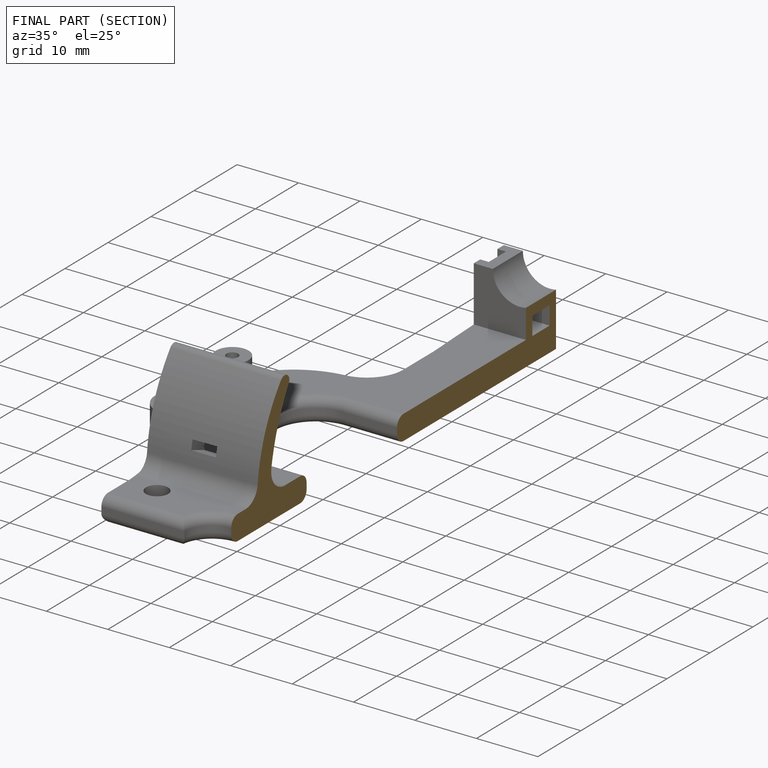
[diagram: finished part — half-section view (interior)]
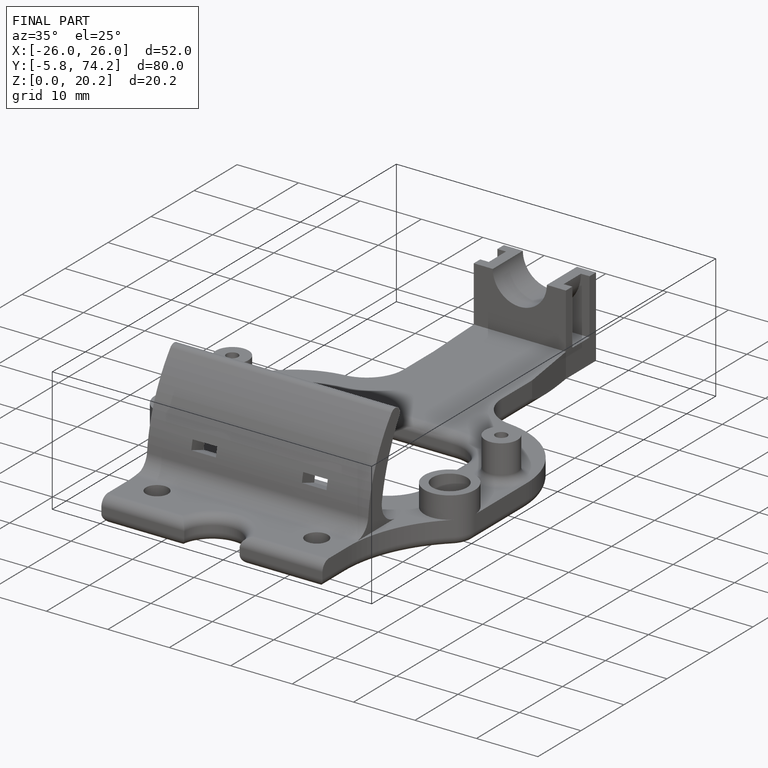
[diagram: finished part — iso view with bounding-box wireframe]
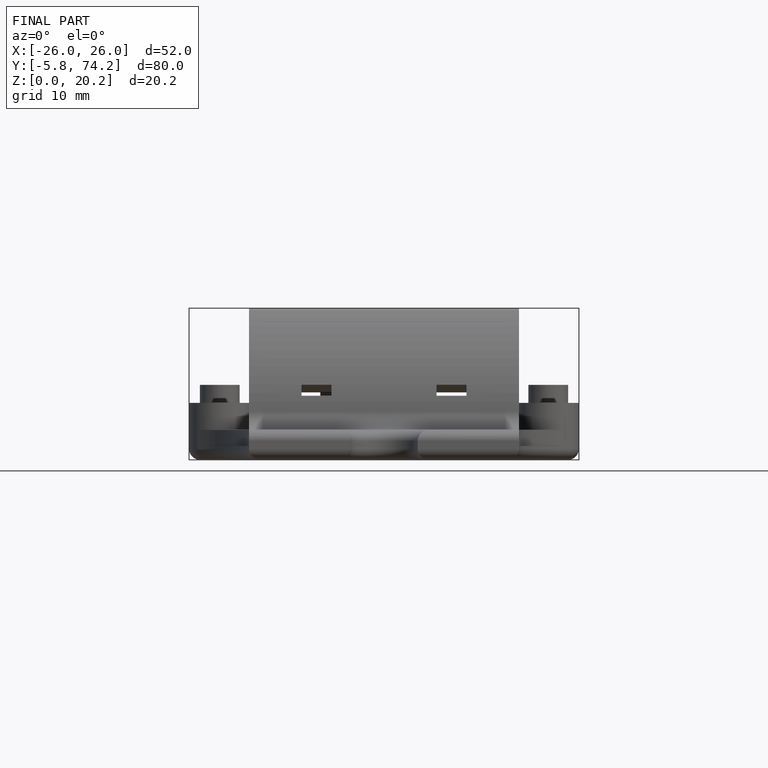
[diagram: finished part — front view with bounding-box wireframe]
